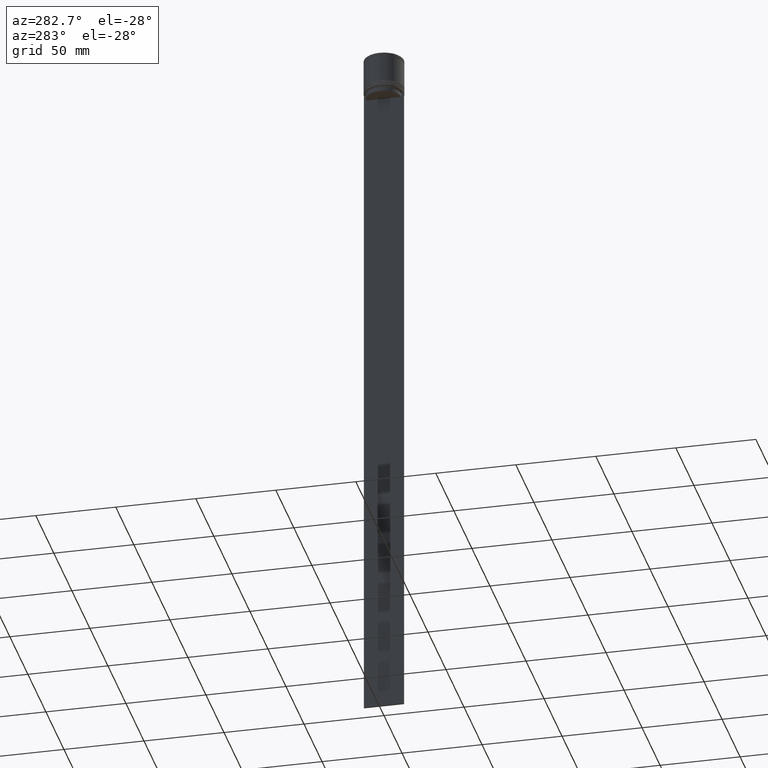
[diagram: clean part render]
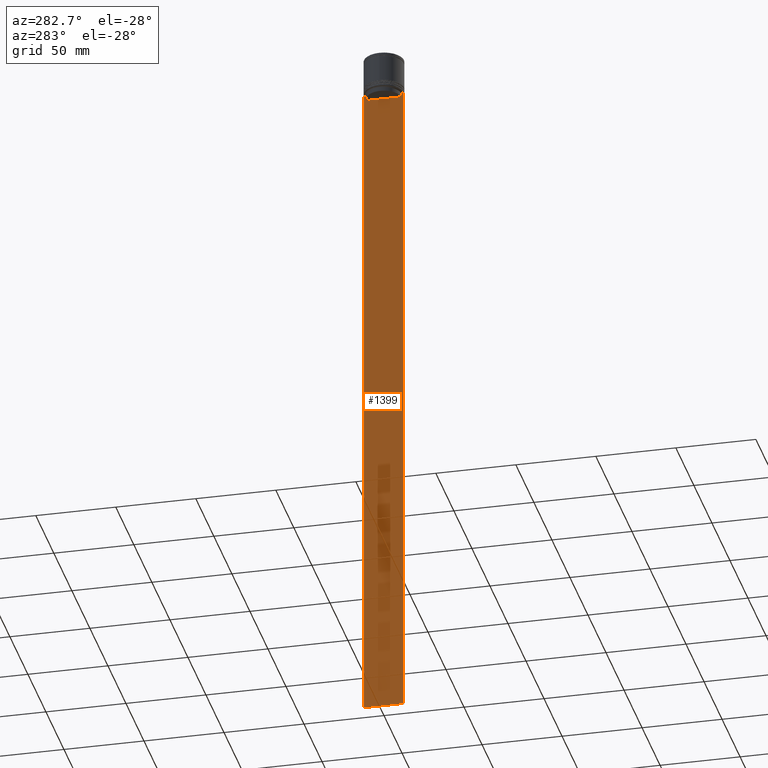
[diagram: same view with one face highlighted and labeled with its STEP entity id]
A machine part, auxiliary view. The second image highlights one B-rep face of the part: STEP entity #1399.
In plain terms, the highlighted planar face has unit normal (-1, 0, 0).
Its self-contained STEP definition (entity closure, byte-faithful):
#30 = VERTEX_POINT ( 'NONE', #206 ) ;
#74 = AXIS2_PLACEMENT_3D ( 'NONE', #1994, #1854, #1346 ) ;
#77 = CARTESIAN_POINT ( 'NONE',  ( -0.5000000000000000000, 10.90000000000000924, -25.50000000000000000 ) ) ;
#82 = EDGE_CURVE ( 'NONE', #30, #837, #562, .T. ) ;
#85 = DIRECTION ( 'NONE',  ( 0.000000000000000000, 0.000000000000000000, -1.000000000000000000 ) ) ;
#90 = CARTESIAN_POINT ( 'NONE',  ( -0.5000000000000000000, 12.38991525394746596, -22.50000000000000000 ) ) ;
#103 = LINE ( 'NONE', #1088, #247 ) ;
#113 = CARTESIAN_POINT ( 'NONE',  ( -0.5000000000000000000, -10.88852607105297032, 0.000000000000000000 ) ) ;
#116 = ORIENTED_EDGE ( 'NONE', *, *, #538, .F. ) ;
#138 = ORIENTED_EDGE ( 'NONE', *, *, #586, .F. ) ;
#171 = EDGE_CURVE ( 'NONE', #1718, #1697, #1720, .T. ) ;
#185 = B_SPLINE_CURVE_WITH_KNOTS ( 'NONE', 3,
 ( #485, #1749, #982, #1741 ),
 .UNSPECIFIED., .F., .F.,
 ( 4, 4 ),
 ( 0.01935560801904635808, 0.02006307108468587813 ),
 .UNSPECIFIED. ) ;
#189 = EDGE_CURVE ( 'NONE', #254, #1697, #1385, .T. ) ;
#201 = ORIENTED_EDGE ( 'NONE', *, *, #1908, .F. ) ;
#206 = CARTESIAN_POINT ( 'NONE',  ( -0.5000000000000000000, 10.88852607105296855, -25.50000000000000000 ) ) ;
#247 = VECTOR ( 'NONE', #1543, 1000.000000000000000 ) ;
#251 = CARTESIAN_POINT ( 'NONE',  ( -0.5000000000000000000, -11.38902980942626897, -22.50000000000000000 ) ) ;
#254 = VERTEX_POINT ( 'NONE', #1450 ) ;
#264 = DIRECTION ( 'NONE',  ( 0.000000000000000000, 1.000000000000000000, 0.000000000000000000 ) ) ;
#288 = EDGE_CURVE ( 'NONE', #324, #1958, #185, .T. ) ;
#324 = VERTEX_POINT ( 'NONE', #792 ) ;
#355 = CARTESIAN_POINT ( 'NONE',  ( -0.5000000000000000000, -10.88852607105297032, -22.99999999999999645 ) ) ;
#409 = CARTESIAN_POINT ( 'NONE',  ( -0.5000000000000000000, 10.88852607105297032, 0.000000000000000000 ) ) ;
#430 = CARTESIAN_POINT ( 'NONE',  ( -0.5000000000000000000, 12.50000000000000711, 2.519992006393609874 ) ) ;
#463 = ORIENTED_EDGE ( 'NONE', *, *, #891, .F. ) ;
#471 = CARTESIAN_POINT ( 'NONE',  ( -0.5000000000000000000, -12.49999999999999289, -22.50000000000000000 ) ) ;
#485 = CARTESIAN_POINT ( 'NONE',  ( -0.5000000000000000000, 11.38902980942626897, -22.50000000000000000 ) ) ;
#505 = VECTOR ( 'NONE', #1076, 1000.000000000000000 ) ;
#513 = LINE ( 'NONE', #1672, #1475 ) ;
#516 = ORIENTED_EDGE ( 'NONE', *, *, #1892, .F. ) ;
#538 = EDGE_CURVE ( 'NONE', #2065, #602, #1564, .T. ) ;
#558 = ORIENTED_EDGE ( 'NONE', *, *, #189, .T. ) ;
#562 = LINE ( 'NONE', #77, #1650 ) ;
#563 = EDGE_CURVE ( 'NONE', #1958, #30, #894, .T. ) ;
#586 = EDGE_CURVE ( 'NONE', #837, #2065, #1555, .T. ) ;
#602 = VERTEX_POINT ( 'NONE', #926 ) ;
#621 = CARTESIAN_POINT ( 'NONE',  ( -0.5000000000000000000, 10.88852607105297032, -22.99999999999999645 ) ) ;
#640 = CARTESIAN_POINT ( 'NONE',  ( -0.5000000000000000000, -12.49999999999999289, -22.50000000000000000 ) ) ;
#652 = DIRECTION ( 'NONE',  ( 0.000000000000000000, -1.000000000000000000, 0.000000000000000000 ) ) ;
#681 = DIRECTION ( 'NONE',  ( 0.000000000000000000, -1.000000000000000000, 0.000000000000000000 ) ) ;
#682 = VECTOR ( 'NONE', #85, 1000.000000000000000 ) ;
#729 = CARTESIAN_POINT ( 'NONE',  ( -0.5000000000000000000, -11.22219891450653151, -22.66667035398018726 ) ) ;
#792 = CARTESIAN_POINT ( 'NONE',  ( -0.5000000000000000000, 11.38902980942626897, -22.50000000000000000 ) ) ;
#837 = VERTEX_POINT ( 'NONE', #1966 ) ;
#891 = EDGE_CURVE ( 'NONE', #939, #324, #513, .T. ) ;
#894 = LINE ( 'NONE', #409, #1812 ) ;
#905 = VECTOR ( 'NONE', #1064, 1000.000000000000000 ) ;
#926 = CARTESIAN_POINT ( 'NONE',  ( -0.5000000000000000000, -11.38902980942626897, -22.50000000000000000 ) ) ;
#927 = LINE ( 'NONE', #1525, #682 ) ;
#938 = LINE ( 'NONE', #471, #1890 ) ;
#939 = VERTEX_POINT ( 'NONE', #90 ) ;
#982 = CARTESIAN_POINT ( 'NONE',  ( -0.5000000000000000000, 11.05536450345590715, -22.83333719074559554 ) ) ;
#990 = ORIENTED_EDGE ( 'NONE', *, *, #82, .F. ) ;
#1039 = VERTEX_POINT ( 'NONE', #1762 ) ;
#1040 = CARTESIAN_POINT ( 'NONE',  ( -0.5000000000000000000, -11.05536450423839412, -22.83333718996392747 ) ) ;
#1043 = EDGE_LOOP ( 'NONE', ( #1269, #463, #1858, #558, #1131, #201, #1546, #516, #116, #138, #990, #1899 ) ) ;
#1061 = PLANE ( 'NONE',  #74 ) ;
#1064 = DIRECTION ( 'NONE',  ( -0.000000000000000000, -0.000000000000000000, 1.000000000000000000 ) ) ;
#1076 = DIRECTION ( 'NONE',  ( 0.000000000000000000, 0.000000000000000000, -1.000000000000000000 ) ) ;
#1088 = CARTESIAN_POINT ( 'NONE',  ( -0.5000000000000000000, -12.49999999999999289, -22.50000000000000000 ) ) ;
#1099 = VERTEX_POINT ( 'NONE', #1443 ) ;
#1131 = ORIENTED_EDGE ( 'NONE', *, *, #171, .F. ) ;
#1202 = DIRECTION ( 'NONE',  ( 0.000000000000000000, -1.000000000000000000, 0.000000000000000000 ) ) ;
#1269 = ORIENTED_EDGE ( 'NONE', *, *, #288, .F. ) ;
#1283 = LINE ( 'NONE', #640, #1383 ) ;
#1346 = DIRECTION ( 'NONE',  ( 0.000000000000000000, 0.000000000000000000, 1.000000000000000000 ) ) ;
#1383 = VECTOR ( 'NONE', #652, 1000.000000000000000 ) ;
#1385 = LINE ( 'NONE', #430, #505 ) ;
#1399 = ADVANCED_FACE ( 'NONE', ( #1693 ), #1061, .T. ) ;
#1443 = CARTESIAN_POINT ( 'NONE',  ( -0.5000000000000000000, -12.38991525394746596, -22.50000000000000000 ) ) ;
#1450 = CARTESIAN_POINT ( 'NONE',  ( -0.5000000000000000000, 12.50000000000000711, -22.50000000000000000 ) ) ;
#1470 = CARTESIAN_POINT ( 'NONE',  ( -0.5000000000000000000, 12.50000000000000711, -444.5000000000000000 ) ) ;
#1475 = VECTOR ( 'NONE', #681, 1000.000000000000000 ) ;
#1525 = CARTESIAN_POINT ( 'NONE',  ( -0.5000000000000000000, -12.49999999999999289, 2.519992006393609874 ) ) ;
#1543 = DIRECTION ( 'NONE',  ( 0.000000000000000000, -1.000000000000000000, 0.000000000000000000 ) ) ;
#1546 = ORIENTED_EDGE ( 'NONE', *, *, #1944, .F. ) ;
#1555 = LINE ( 'NONE', #113, #905 ) ;
#1564 = B_SPLINE_CURVE_WITH_KNOTS ( 'NONE', 3,
 ( #1729, #1040, #729, #251 ),
 .UNSPECIFIED., .F., .F.,
 ( 4, 4 ),
 ( 0.05041323384703231408, 0.05112713601261610619 ),
 .UNSPECIFIED. ) ;
#1566 = DIRECTION ( 'NONE',  ( 0.000000000000000000, 0.000000000000000000, -1.000000000000000000 ) ) ;
#1615 = VECTOR ( 'NONE', #264, 1000.000000000000000 ) ;
#1650 = VECTOR ( 'NONE', #1202, 1000.000000000000000 ) ;
#1672 = CARTESIAN_POINT ( 'NONE',  ( -0.5000000000000000000, -12.49999999999999289, -22.50000000000000000 ) ) ;
#1690 = CARTESIAN_POINT ( 'NONE',  ( -0.5000000000000000000, -12.49999999999999289, -444.5000000000000000 ) ) ;
#1693 = FACE_OUTER_BOUND ( 'NONE', #1043, .T. ) ;
#1697 = VERTEX_POINT ( 'NONE', #1470 ) ;
#1718 = VERTEX_POINT ( 'NONE', #1978 ) ;
#1720 = LINE ( 'NONE', #1690, #1615 ) ;
#1729 = CARTESIAN_POINT ( 'NONE',  ( -0.5000000000000000000, -10.88852607105297032, -22.99999999999999645 ) ) ;
#1741 = CARTESIAN_POINT ( 'NONE',  ( -0.5000000000000000000, 10.88852607105297032, -22.99999999999999645 ) ) ;
#1749 = CARTESIAN_POINT ( 'NONE',  ( -0.5000000000000000000, 11.22219891375843126, -22.66667035472756808 ) ) ;
#1762 = CARTESIAN_POINT ( 'NONE',  ( -0.5000000000000000000, -12.49999999999999289, -22.50000000000000000 ) ) ;
#1812 = VECTOR ( 'NONE', #1566, 1000.000000000000000 ) ;
#1854 = DIRECTION ( 'NONE',  ( -1.000000000000000000, 0.000000000000000000, 0.000000000000000000 ) ) ;
#1858 = ORIENTED_EDGE ( 'NONE', *, *, #2051, .F. ) ;
#1890 = VECTOR ( 'NONE', #1924, 1000.000000000000000 ) ;
#1892 = EDGE_CURVE ( 'NONE', #602, #1099, #103, .T. ) ;
#1899 = ORIENTED_EDGE ( 'NONE', *, *, #563, .F. ) ;
#1908 = EDGE_CURVE ( 'NONE', #1039, #1718, #927, .T. ) ;
#1924 = DIRECTION ( 'NONE',  ( 0.000000000000000000, -1.000000000000000000, 0.000000000000000000 ) ) ;
#1944 = EDGE_CURVE ( 'NONE', #1099, #1039, #1283, .T. ) ;
#1958 = VERTEX_POINT ( 'NONE', #621 ) ;
#1966 = CARTESIAN_POINT ( 'NONE',  ( -0.5000000000000000000, -10.88852607105296855, -25.50000000000000000 ) ) ;
#1978 = CARTESIAN_POINT ( 'NONE',  ( -0.5000000000000000000, -12.49999999999999289, -444.5000000000000000 ) ) ;
#1994 = CARTESIAN_POINT ( 'NONE',  ( -0.5000000000000000000, -12.49999999999999289, 2.519992006393609874 ) ) ;
#2051 = EDGE_CURVE ( 'NONE', #254, #939, #938, .T. ) ;
#2065 = VERTEX_POINT ( 'NONE', #355 ) ;